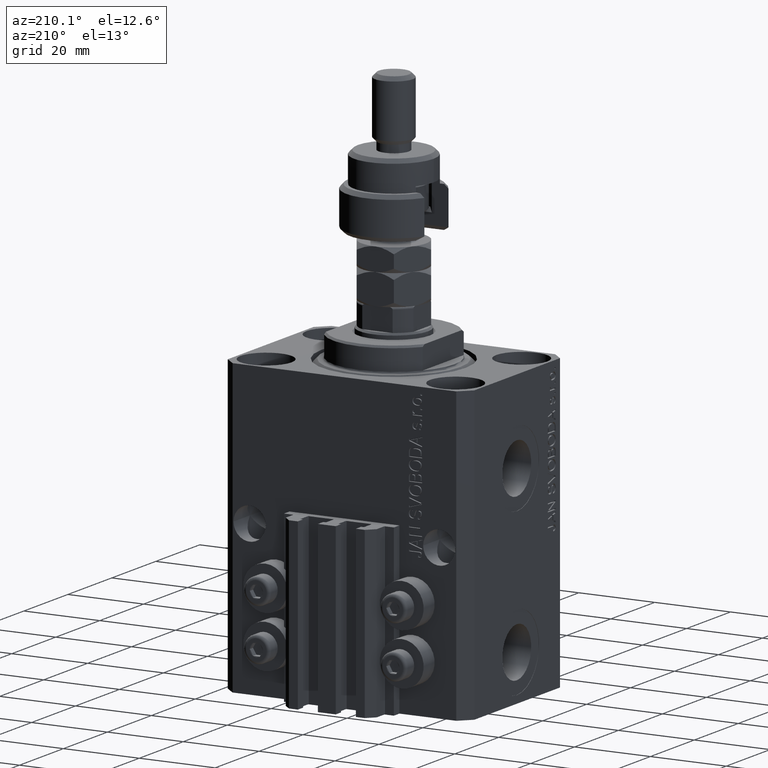
[diagram: clean part render]
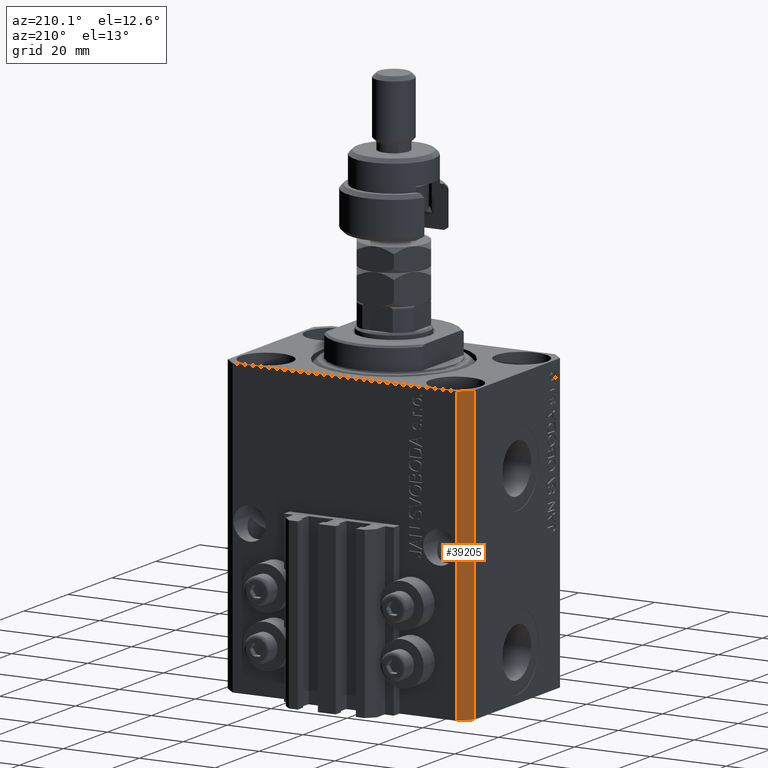
[diagram: same view with one face highlighted and labeled with its STEP entity id]
A machine part, auxiliary view. The second image highlights one B-rep face of the part: STEP entity #39205.
In plain terms, the highlighted planar face has unit normal (-0.7071, 0.7071, 0).
Its self-contained STEP definition (entity closure, byte-faithful):
#608 = VERTEX_POINT ( 'NONE', #26022 ) ;
#1266 = VERTEX_POINT ( 'NONE', #25695 ) ;
#1353 = DIRECTION ( 'NONE',  ( -0.7071067811865474617, -0.7071067811865474617, 0.000000000000000000 ) ) ;
#2068 = CARTESIAN_POINT ( 'NONE',  ( -29.49999999999650413, 22.49999999999949907, -77.00000000000000000 ) ) ;
#2908 = CARTESIAN_POINT ( 'NONE',  ( -32.49999999999650413, 19.49999999999949907, -77.00000000000000000 ) ) ;
#3534 = LINE ( 'NONE', #14398, #31350 ) ;
#6434 = VECTOR ( 'NONE', #17468, 1000.000000000000000 ) ;
#6527 = EDGE_CURVE ( 'NONE', #48830, #1266, #3534, .T. ) ;
#7185 = ORIENTED_EDGE ( 'NONE', *, *, #6527, .T. ) ;
#8019 = CARTESIAN_POINT ( 'NONE',  ( -29.49999999999650413, 22.49999999999949907, 0.000000000000000000 ) ) ;
#12212 = EDGE_CURVE ( 'NONE', #48830, #608, #36677, .T. ) ;
#14398 = CARTESIAN_POINT ( 'NONE',  ( -29.49999999999650413, 22.49999999999949907, -77.00000000000000000 ) ) ;
#15796 = EDGE_CURVE ( 'NONE', #608, #27976, #27479, .T. ) ;
#17468 = DIRECTION ( 'NONE',  ( 0.000000000000000000, 0.000000000000000000, 1.000000000000000000 ) ) ;
#18304 = DIRECTION ( 'NONE',  ( 0.000000000000000000, 0.000000000000000000, 1.000000000000000000 ) ) ;
#19803 = CARTESIAN_POINT ( 'NONE',  ( -29.49999999999650413, 22.49999999999949907, -77.00000000000000000 ) ) ;
#22118 = LINE ( 'NONE', #2908, #22798 ) ;
#22798 = VECTOR ( 'NONE', #18304, 1000.000000000000000 ) ;
#22971 = CARTESIAN_POINT ( 'NONE',  ( -32.49999999999650413, 19.49999999999949907, 0.000000000000000000 ) ) ;
#24089 = PLANE ( 'NONE',  #29255 ) ;
#25350 = ORIENTED_EDGE ( 'NONE', *, *, #15796, .F. ) ;
#25695 = CARTESIAN_POINT ( 'NONE',  ( -32.49999999999650413, 19.49999999999949907, -77.00000000000000000 ) ) ;
#26022 = CARTESIAN_POINT ( 'NONE',  ( -29.49999999999650413, 22.49999999999949907, 0.000000000000000000 ) ) ;
#27479 = LINE ( 'NONE', #8019, #43680 ) ;
#27976 = VERTEX_POINT ( 'NONE', #22971 ) ;
#28635 = CARTESIAN_POINT ( 'NONE',  ( -29.49999999999650413, 22.49999999999949907, -77.00000000000000000 ) ) ;
#29255 = AXIS2_PLACEMENT_3D ( 'NONE', #28635, #32665, #1353 ) ;
#29578 = DIRECTION ( 'NONE',  ( -0.7071067811865474617, -0.7071067811865474617, 0.000000000000000000 ) ) ;
#31350 = VECTOR ( 'NONE', #29578, 1000.000000000000114 ) ;
#31913 = FACE_OUTER_BOUND ( 'NONE', #43214, .T. ) ;
#32665 = DIRECTION ( 'NONE',  ( -0.7071067811865475727, 0.7071067811865475727, 0.000000000000000000 ) ) ;
#36677 = LINE ( 'NONE', #2068, #6434 ) ;
#39205 = ADVANCED_FACE ( 'NONE', ( #31913 ), #24089, .T. ) ;
#40112 = ORIENTED_EDGE ( 'NONE', *, *, #12212, .F. ) ;
#41698 = ORIENTED_EDGE ( 'NONE', *, *, #43524, .T. ) ;
#42913 = DIRECTION ( 'NONE',  ( -0.7071067811865474617, -0.7071067811865474617, 0.000000000000000000 ) ) ;
#43214 = EDGE_LOOP ( 'NONE', ( #25350, #40112, #7185, #41698 ) ) ;
#43524 = EDGE_CURVE ( 'NONE', #1266, #27976, #22118, .T. ) ;
#43680 = VECTOR ( 'NONE', #42913, 1000.000000000000114 ) ;
#48830 = VERTEX_POINT ( 'NONE', #19803 ) ;